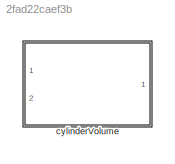
MODEL slx_2fad22caef3b
KIND library
CONFIG AbsTol = auto
CONFIG EnableMultiTasking = off
CONFIG FixedStep = auto
CONFIG MaxStep = auto
CONFIG MinStep = auto
CONFIG RelTol = 1e-3
CONFIG SampleTimeConstraint = Unconstrained
CONFIG SolverName = VariableStepAuto
CONFIG StartTime = 0.0
CONFIG StopTime = 10.0
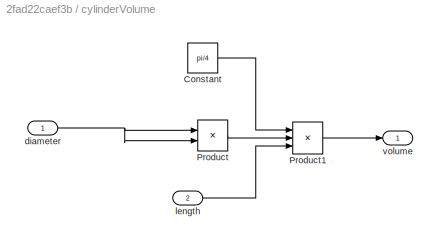
BLOCK [SubSystem] cylinderVolume
  Ports = [2, 1]
  RequestExecContextInheritance = off
BLOCK [Constant] cylinderVolume/Constant
  Value = pi/4
BLOCK [Product] cylinderVolume/Product
  Ports = [2, 1]
BLOCK [Product] cylinderVolume/Product1
  Inputs = 3
  Ports = [3, 1]
BLOCK [Inport] cylinderVolume/diameter
BLOCK [Inport] cylinderVolume/length
  Port = 2
BLOCK [Outport] cylinderVolume/volume
  VectorParamsAs1DForOutWhenUnconnected = off
LINE cylinderVolume/Constant:1 -> cylinderVolume/Product1:1
LINE cylinderVolume/Product1:1 -> cylinderVolume/volume:1
LINE cylinderVolume/Product:1 -> cylinderVolume/Product1:2
NET cylinderVolume/diameter:1 -> cylinderVolume/Product:1, cylinderVolume/Product:2
LINE cylinderVolume/length:1 -> cylinderVolume/Product1:3
note: NET lines group one-source signal fan-out (src -> all destinations, sorted); 1:1 wires keep LINE
